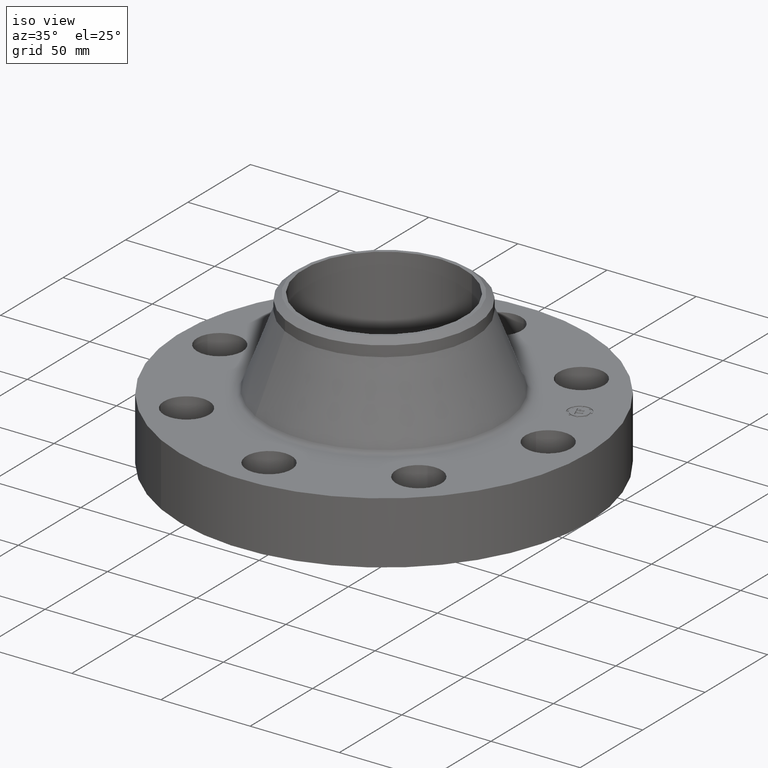
[diagram: clean part render]
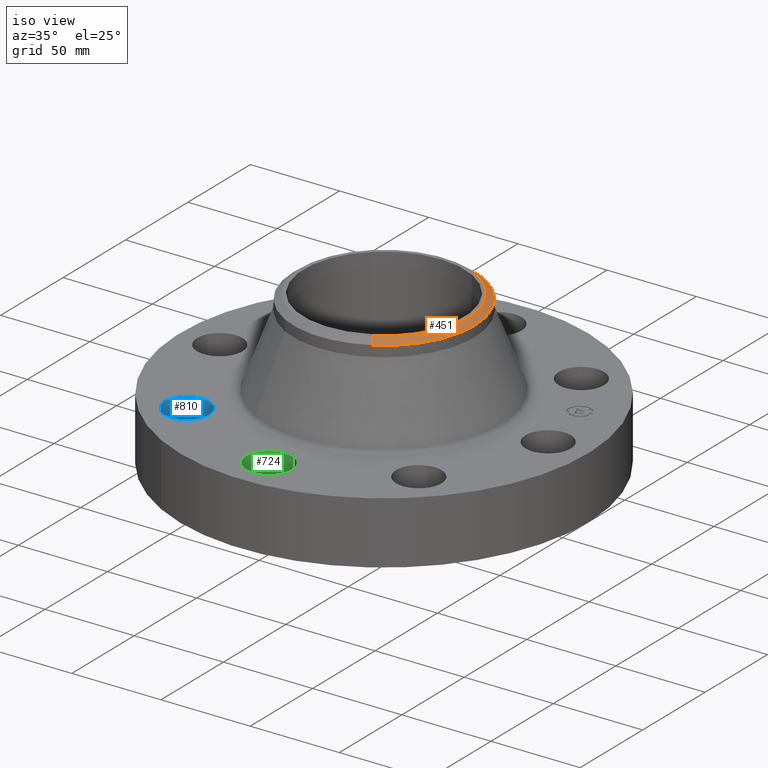
[diagram: same view with three faces highlighted in distinct colors, each labeled with its STEP entity id]
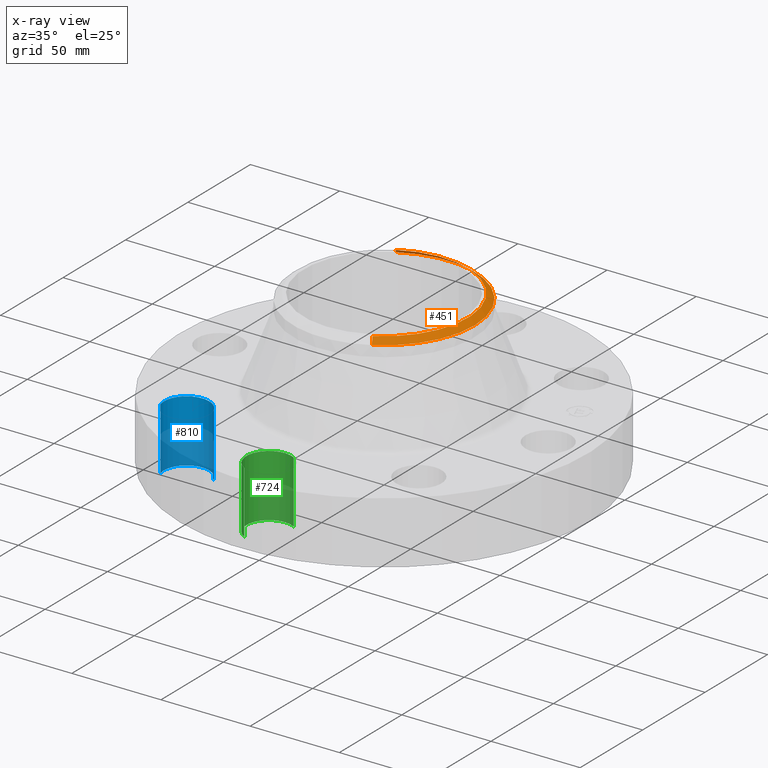
[diagram: x-ray of the same camera — body ghosted, the three highlighted faces saturated]
A machine part, iso view with three faces highlighted in distinct colors.
The next image is the same camera in x-ray (body ghosted, the three faces saturated) — at least one of them is partly hidden behind the body in this view.
Their STEP definitions:

[orange] entity #451 — the highlighted conical surface has half-angle 52.5 deg.
#270=AXIS2_PLACEMENT_3D('Circle Axis2P3D',#268,#269,$) ;
#297=AXIS2_PLACEMENT_3D('Circle Axis2P3D',#295,#296,$) ;
#311=AXIS2_PLACEMENT_3D('Cone Axis2P3D',#308,#309,#310) ;
#432=AXIS2_PLACEMENT_3D('Circle Axis2P3D',#430,#431,$) ;
#265=CARTESIAN_POINT('Vertex',(0.958851077212,1.75516512379,3.2670035486)) ;
#268=CARTESIAN_POINT('Axis2P3D Location',(0.,0.,3.2670035486)) ;
#272=CARTESIAN_POINT('Vertex',(0.958851077212,-1.75516512379,3.2670035486)) ;
#292=CARTESIAN_POINT('Vertex',(-0.958851077212,1.75516512379,3.2670035486)) ;
#295=CARTESIAN_POINT('Axis2P3D Location',(0.,0.,3.2670035486)) ;
#308=CARTESIAN_POINT('Axis2P3D Location',(0.,0.,3.38000000001)) ;
#313=CARTESIAN_POINT('Line Origine',(0.923551012555,-1.69054878886,3.32350177431)) ;
#317=CARTESIAN_POINT('Vertex',(0.888250947897,-1.62593245392,3.38000000001)) ;
#324=CARTESIAN_POINT('Vertex',(-0.888250947897,1.62593245392,3.38000000001)) ;
#327=CARTESIAN_POINT('Line Origine',(-0.923551012555,1.69054878886,3.32350177431)) ;
#430=CARTESIAN_POINT('Axis2P3D Location',(0.,0.,3.38000000001)) ;
#269=DIRECTION('Axis2P3D Direction',(0.,0.,-0.0393700787402)) ;
#296=DIRECTION('Axis2P3D Direction',(0.,0.,-0.0393700787402)) ;
#309=DIRECTION('Axis2P3D Direction',(-0.,-0.,-0.0393700787402)) ;
#310=DIRECTION('Axis2P3D XDirection',(-0.0188750212049,0.0345504945626,0.)) ;
#314=DIRECTION('Vector Direction',(0.014974561121,-0.02741075027,-0.023966985394)) ;
#328=DIRECTION('Vector Direction',(-0.014974561121,0.02741075027,-0.023966985394)) ;
#431=DIRECTION('Axis2P3D Direction',(0.,0.,-0.0393700787402)) ;
#315=VECTOR('Line Direction',#314,0.0393700787402) ;
#329=VECTOR('Line Direction',#328,0.0393700787402) ;
#445=ORIENTED_EDGE('',*,*,#331,.F.) ;
#446=ORIENTED_EDGE('',*,*,#434,.F.) ;
#447=ORIENTED_EDGE('',*,*,#319,.T.) ;
#448=ORIENTED_EDGE('',*,*,#274,.T.) ;
#449=ORIENTED_EDGE('',*,*,#299,.F.) ;
#451=ADVANCED_FACE('PartBody',(#450),#312,.T.) ;
#271=CIRCLE('generated circle',#270,2.00000000001) ;
#298=CIRCLE('generated circle',#297,2.00000000001) ;
#433=CIRCLE('generated circle',#432,1.85274015749) ;
#312=CONICAL_SURFACE('Cone',#311,1.85274015749,0.916297857297) ;
#274=EDGE_CURVE('',#273,#266,#271,.F.) ;
#299=EDGE_CURVE('',#293,#266,#298,.T.) ;
#319=EDGE_CURVE('',#318,#273,#316,.T.) ;
#331=EDGE_CURVE('',#325,#293,#330,.T.) ;
#434=EDGE_CURVE('',#318,#325,#433,.F.) ;
#444=EDGE_LOOP('',(#445,#446,#447,#448,#449)) ;
#450=FACE_OUTER_BOUND('',#444,.T.) ;
#316=LINE('Line',#313,#315) ;
#330=LINE('Line',#327,#329) ;
#266=VERTEX_POINT('',#265) ;
#273=VERTEX_POINT('',#272) ;
#293=VERTEX_POINT('',#292) ;
#318=VERTEX_POINT('',#317) ;
#325=VERTEX_POINT('',#324) ;

[blue] entity #810 — the highlighted cylindrical surface (edge-blend (fillet) strip) has radius 12.7 mm, axis along (-0, 0, -1).
#559=AXIS2_PLACEMENT_3D('Circle Axis2P3D',#557,#558,$) ;
#771=AXIS2_PLACEMENT_3D('Cylinder Axis2P3D',#768,#769,#770) ;
#801=AXIS2_PLACEMENT_3D('Circle Axis2P3D',#799,#800,$) ;
#552=CARTESIAN_POINT('Vertex',(-2.08348726682,-2.42249231624,0.)) ;
#554=CARTESIAN_POINT('Vertex',(-3.04303689681,-2.70403184738,0.)) ;
#557=CARTESIAN_POINT('Axis2P3D Location',(-2.56326208181,-2.56326208181,0.)) ;
#768=CARTESIAN_POINT('Axis2P3D Location',(-2.56326208181,-2.56326208181,1.37606299213)) ;
#773=CARTESIAN_POINT('Line Origine',(-2.08348726682,-2.42249231624,0.690000000003)) ;
#777=CARTESIAN_POINT('Vertex',(-2.08348726682,-2.42249231624,1.38000000001)) ;
#780=CARTESIAN_POINT('Line Origine',(-3.04303689681,-2.70403184738,0.690000000003)) ;
#784=CARTESIAN_POINT('Vertex',(-3.04303689681,-2.70403184738,1.38000000001)) ;
#799=CARTESIAN_POINT('Axis2P3D Location',(-2.56326208181,-2.56326208181,1.38000000001)) ;
#558=DIRECTION('Axis2P3D Direction',(0.,0.,-0.0393700787402)) ;
#769=DIRECTION('Axis2P3D Direction',(-0.,0.,-0.0393700787402)) ;
#770=DIRECTION('Axis2P3D XDirection',(-0.0377775444876,-0.0110842335096,0.)) ;
#774=DIRECTION('Vector Direction',(0.,0.,-0.0393700787402)) ;
#781=DIRECTION('Vector Direction',(0.,0.,-0.0393700787402)) ;
#800=DIRECTION('Axis2P3D Direction',(-0.,0.,-0.0393700787402)) ;
#775=VECTOR('Line Direction',#774,0.0393700787402) ;
#782=VECTOR('Line Direction',#781,0.0393700787402) ;
#805=ORIENTED_EDGE('',*,*,#786,.F.) ;
#806=ORIENTED_EDGE('',*,*,#561,.T.) ;
#807=ORIENTED_EDGE('',*,*,#779,.T.) ;
#808=ORIENTED_EDGE('',*,*,#803,.F.) ;
#810=ADVANCED_FACE('PartBody',(#809),#772,.F.) ;
#560=CIRCLE('generated circle',#559,0.500000000002) ;
#802=CIRCLE('generated circle',#801,0.500000000002) ;
#772=CYLINDRICAL_SURFACE('generated cylinder',#771,0.500000000002) ;
#561=EDGE_CURVE('',#555,#553,#560,.T.) ;
#779=EDGE_CURVE('',#553,#778,#776,.F.) ;
#786=EDGE_CURVE('',#555,#785,#783,.F.) ;
#803=EDGE_CURVE('',#785,#778,#802,.T.) ;
#804=EDGE_LOOP('',(#805,#806,#807,#808)) ;
#809=FACE_OUTER_BOUND('',#804,.T.) ;
#776=LINE('Line',#773,#775) ;
#783=LINE('Line',#780,#782) ;
#553=VERTEX_POINT('',#552) ;
#555=VERTEX_POINT('',#554) ;
#778=VERTEX_POINT('',#777) ;
#785=VERTEX_POINT('',#784) ;

[green] entity #724 — the highlighted cylindrical surface (edge-blend (fillet) strip) has radius 12.7 mm, axis along (0, -0, -1).
#541=AXIS2_PLACEMENT_3D('Circle Axis2P3D',#539,#540,$) ;
#685=AXIS2_PLACEMENT_3D('Cylinder Axis2P3D',#682,#683,#684) ;
#715=AXIS2_PLACEMENT_3D('Circle Axis2P3D',#713,#714,$) ;
#534=CARTESIAN_POINT('Vertex',(0.239712769303,-3.18620871907,0.)) ;
#536=CARTESIAN_POINT('Vertex',(-0.239712769303,-4.06379128096,0.)) ;
#539=CARTESIAN_POINT('Axis2P3D Location',(-8.39223703654E-016,-3.62500000001,0.)) ;
#682=CARTESIAN_POINT('Axis2P3D Location',(-3.37515236756E-016,-3.62500000001,1.37606299213)) ;
#687=CARTESIAN_POINT('Line Origine',(0.239712769303,-3.18620871907,0.690000000003)) ;
#691=CARTESIAN_POINT('Vertex',(0.239712769303,-3.18620871907,1.38000000001)) ;
#694=CARTESIAN_POINT('Line Origine',(-0.239712769303,-4.06379128096,0.690000000003)) ;
#698=CARTESIAN_POINT('Vertex',(-0.239712769303,-4.06379128096,1.38000000001)) ;
#713=CARTESIAN_POINT('Axis2P3D Location',(-3.37515236756E-016,-3.62500000001,1.38000000001)) ;
#540=DIRECTION('Axis2P3D Direction',(0.,0.,-0.0393700787402)) ;
#683=DIRECTION('Axis2P3D Direction',(0.,-0.,-0.0393700787402)) ;
#684=DIRECTION('Axis2P3D XDirection',(-0.0188750212049,-0.0345504945626,0.)) ;
#688=DIRECTION('Vector Direction',(0.,0.,-0.0393700787402)) ;
#695=DIRECTION('Vector Direction',(0.,0.,-0.0393700787402)) ;
#714=DIRECTION('Axis2P3D Direction',(0.,-0.,-0.0393700787402)) ;
#689=VECTOR('Line Direction',#688,0.0393700787402) ;
#696=VECTOR('Line Direction',#695,0.0393700787402) ;
#719=ORIENTED_EDGE('',*,*,#700,.F.) ;
#720=ORIENTED_EDGE('',*,*,#543,.T.) ;
#721=ORIENTED_EDGE('',*,*,#693,.T.) ;
#722=ORIENTED_EDGE('',*,*,#717,.F.) ;
#724=ADVANCED_FACE('PartBody',(#723),#686,.F.) ;
#542=CIRCLE('generated circle',#541,0.500000000002) ;
#716=CIRCLE('generated circle',#715,0.500000000002) ;
#686=CYLINDRICAL_SURFACE('generated cylinder',#685,0.500000000002) ;
#543=EDGE_CURVE('',#537,#535,#542,.T.) ;
#693=EDGE_CURVE('',#535,#692,#690,.F.) ;
#700=EDGE_CURVE('',#537,#699,#697,.F.) ;
#717=EDGE_CURVE('',#699,#692,#716,.T.) ;
#718=EDGE_LOOP('',(#719,#720,#721,#722)) ;
#723=FACE_OUTER_BOUND('',#718,.T.) ;
#690=LINE('Line',#687,#689) ;
#697=LINE('Line',#694,#696) ;
#535=VERTEX_POINT('',#534) ;
#537=VERTEX_POINT('',#536) ;
#692=VERTEX_POINT('',#691) ;
#699=VERTEX_POINT('',#698) ;